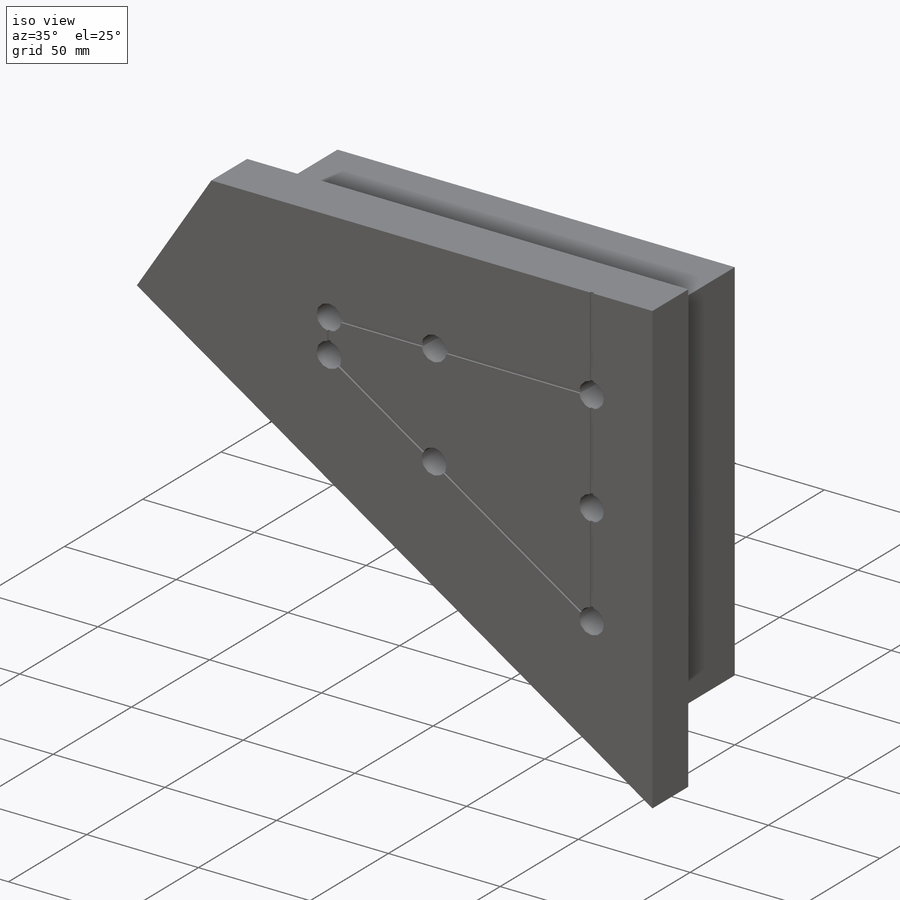
[diagram: iso view]
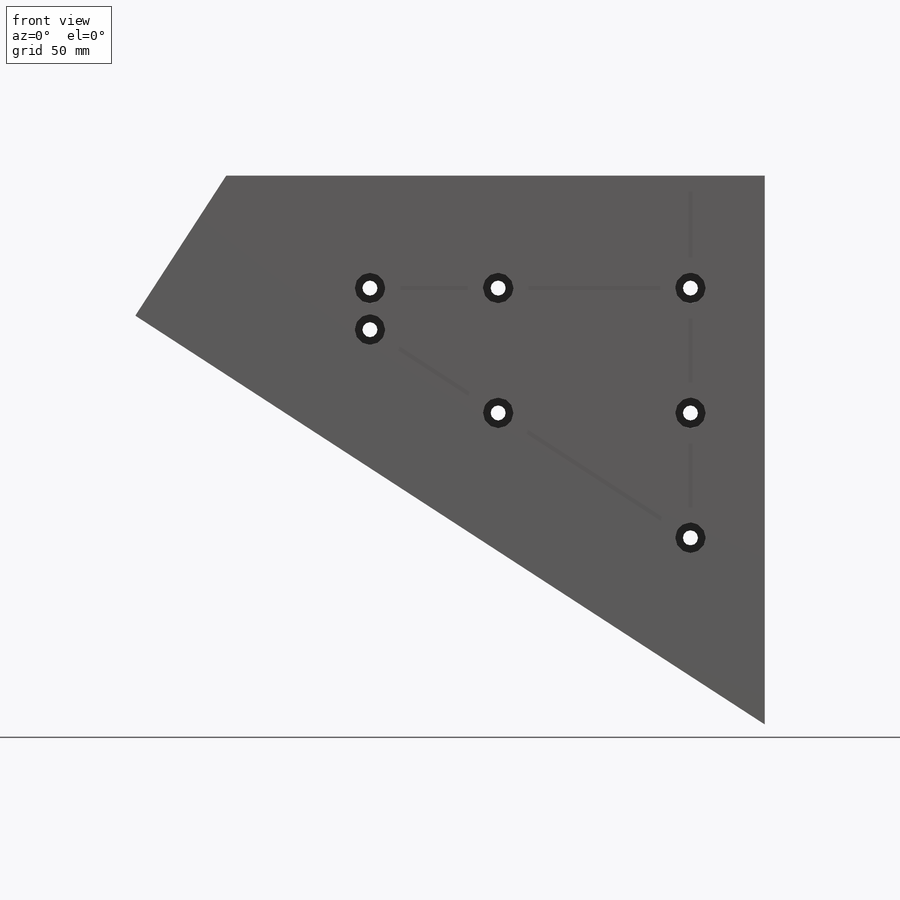
[diagram: front view]
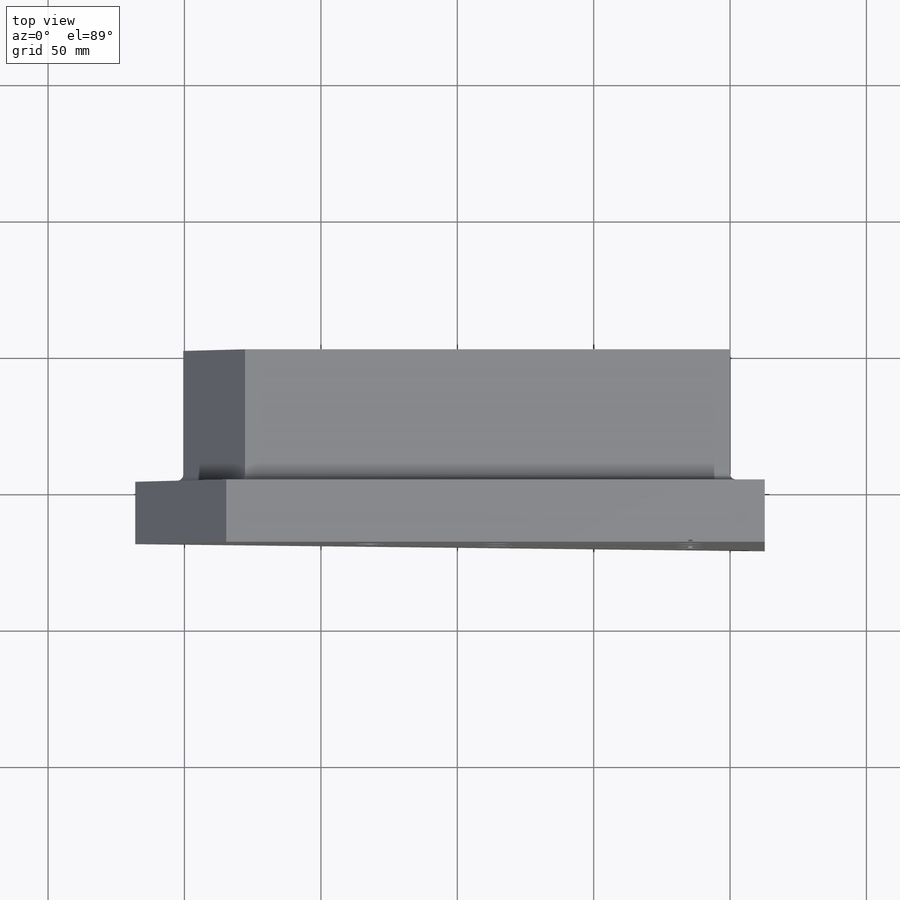
[diagram: top view]
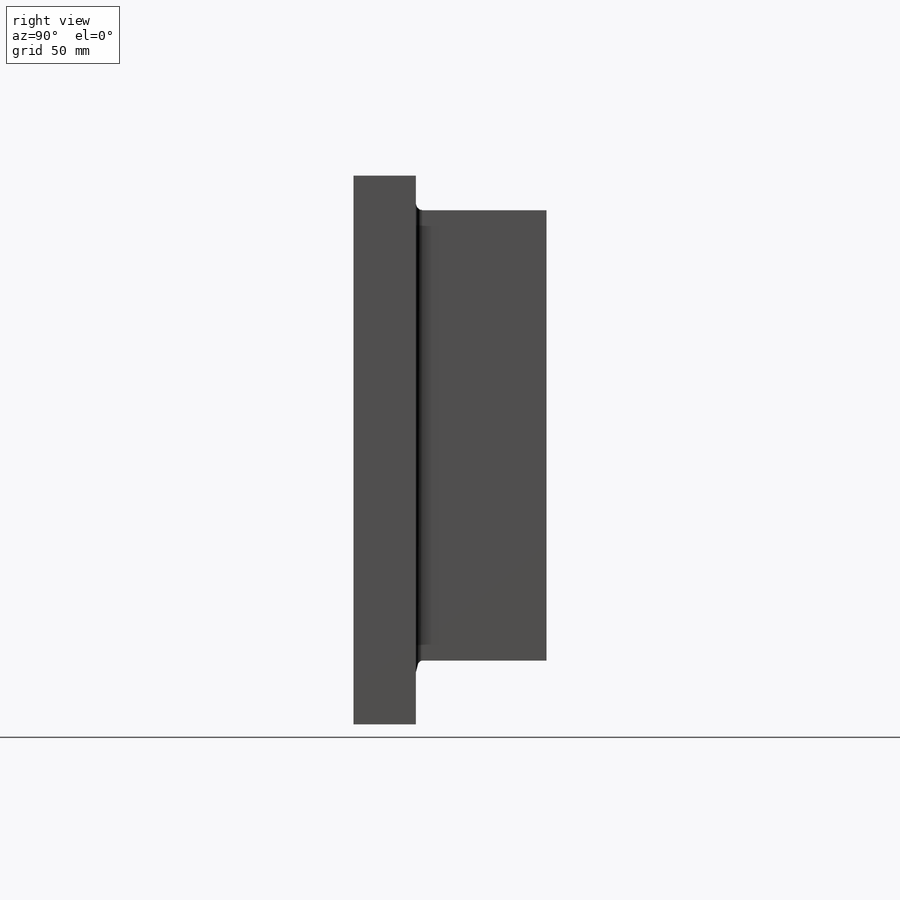
[diagram: right view]
SOLIDWORKS PART (.sldprt)
format: sldprt  version: not decoded by parser v0  size: 1,088,000 bytes
history: native  units: mm
features: sketch x5, extrude x2, material x1, hole x1, fillet x1, cut_extrude x1 + 1 further entry (+12 scaffold rows collapsed)
feature tree (24):
  scaffold x12  (default folders/planes/origin — collapsed)
  material  "6061-T6 Al"
  "Design Table"  ID=392984584
  sketch  "Sketch1"  dims[c1.D2=6.35mm c1.D4=6.35mm c1.D6=6.35mm c1.D5=6.35mm c1.D1=12.7mm c2.D2=12.7mm c2.D3=133.35mm c3.D3=57.0deg c3.D4=187.325mm c3.D5=~185.624032mm c4.D5=33.0deg c4.D6=~14.944578mm c4.D4=~99.188669mm c5.D6=~64.413875mm c5.D5=~62.736331mm c5.D7=165.1mm c5.D8=~36.635086mm c6.D8=85.0deg c6.D9=~213.092498mm c6.D10=~213.092498mm c7.D10=108.0deg c7.D5=~69.561395mm c7.D2=44.45mm c7.D1=177.8mm c7.D3=169.8498mm c8.D3=57.0deg c8.D2=192.024mm c9.D2=100.0deg c10.D2=~47.60437mm c11.D2=115.0deg c11.D1=38.1mm]
  extrude  "Boss-Extrude1"  Depth=70.7898mm
  hole  "CBORE for #10 Socket Head Cap Screw1"  Diameter=5.5372mm Depth=70.7898mm
  sketch  "Sketch12"  dims[c1.D1=0.0mm c1.D2=~28.268301mm c1.D3=~62.933822mm c1.D4=~69.462485mm c1.D5=~126.433636mm c1.D6=~133.469547mm c1.D7=~168.009794mm c1.D8=0.0mm c1.D9=~31.709992mm c1.D10=~55.270994mm c1.D11=~38.314556mm c1.D12=~66.688094mm c1.D13=~106.070665mm c1.D14=~108.034387mm c2.D1=0.0mm c2.D2=~30.758324mm c2.D3=~76.53339mm c2.D4=~122.308457mm c2.D5=0.0mm c2.D6=~14.535778mm c2.D7=~85.023199mm c2.D8=~132.031708mm c3.D7=~85.023199mm c3.D8=~132.031708mm c3.D2=~45.775066mm c3.D3=~45.775066mm c3.D4=28.575mm]
  sketch  "Sketch11"  dims[hole-wizard template sketch: 41 standard entries collapsed; hole parameters kept: c12.Thru Hole Dia.=5.5372mm c12.Thru Hole Depth=70.7898mm c12.C'Bore Dia.=11.1252mm c12.C'Bore Depth=66.8274mm]
  sketch  "Sketch13"  dims[D1=12.7mm]
  extrude  "Boss-Extrude2"  Depth=22.8854mm
  fillet  "Fillet2"  Radius=2.3368mm
  sketch  "Sketch14"  dims[D9=0.762mm D10=0.762mm D1=0.762mm D2=0.762mm D3=0.762mm D4=0.762mm D5=0.762mm D6=0.762mm D7=0.762mm D8=0.762mm]
  cut_extrude  "Cut-Extrude1"  Depth=0.762mm
decode coverage: 10 of 10 modeling features carry decoded parameters; 1 rows unclassified (native names shown)
note: ~ marks probable driven/reference dimensions
note: suppression state not decoded; provenance and decode notes live in map.json
